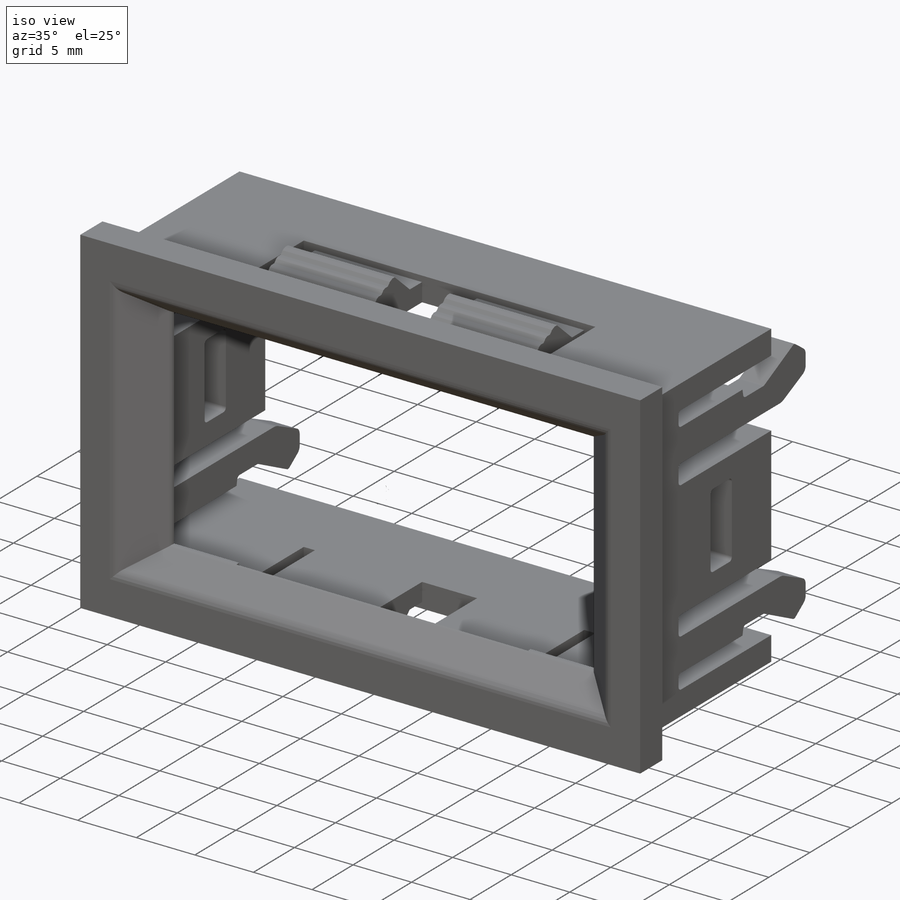
[diagram: iso view]
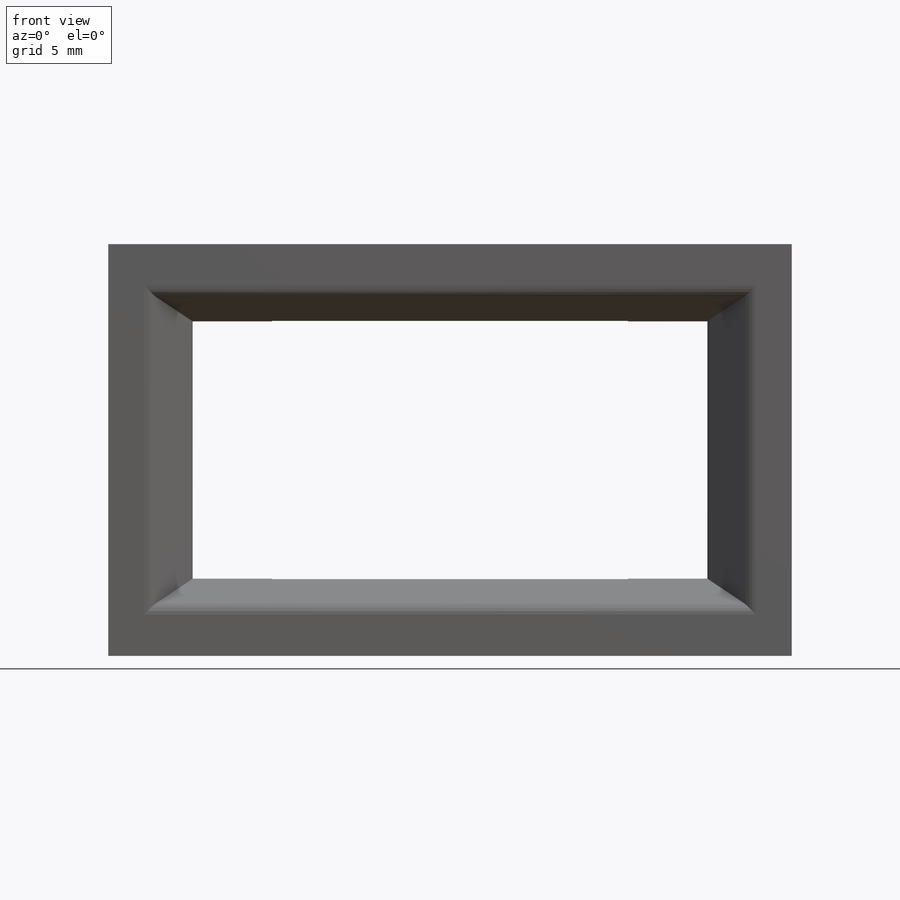
[diagram: front view]
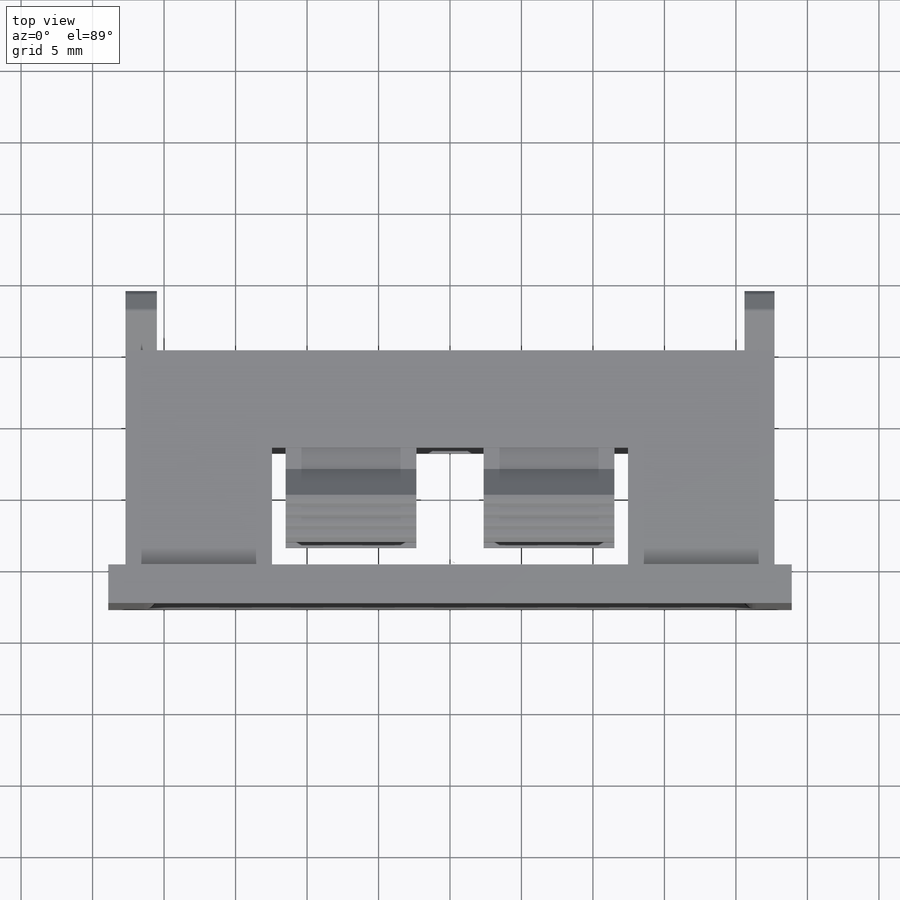
[diagram: top view]
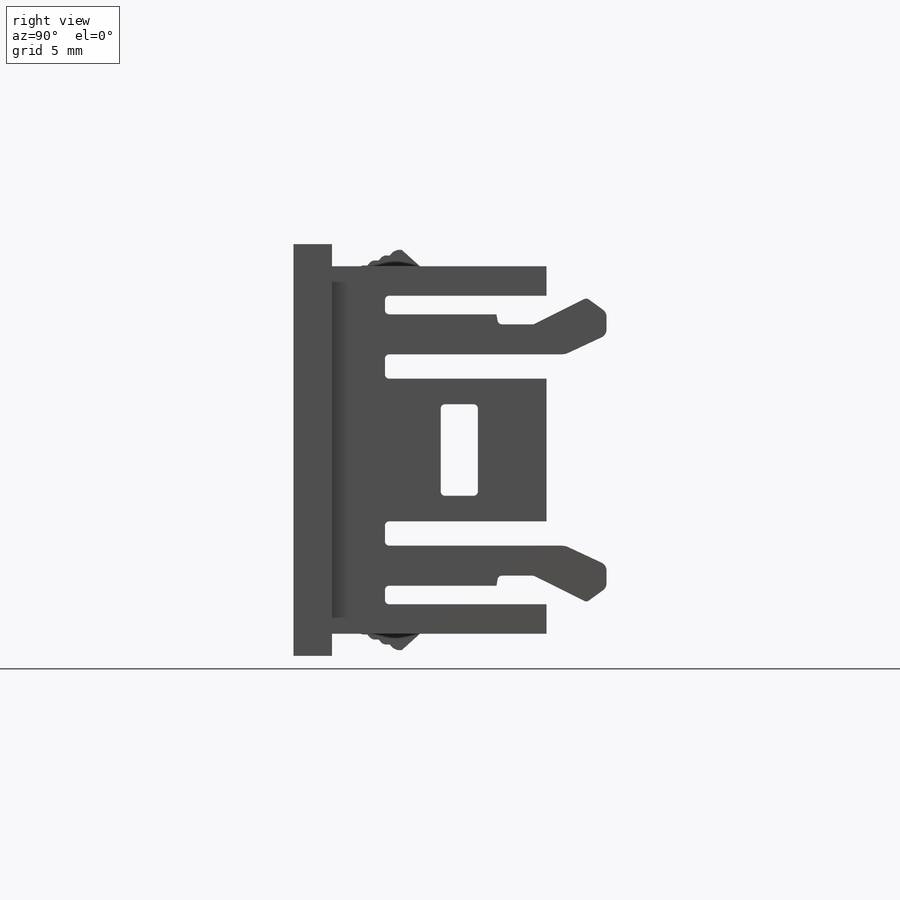
[diagram: right view]
SOLIDWORKS PART (.sldprt)
format: sldprt  version: not decoded by parser v0  size: 660,992 bytes
history: native  units: mm
features: sketch x11, extrude x6, cut_extrude x5, plane x3, fillet x2, material x1, mirror x1 (+10 scaffold rows collapsed)
feature tree (39):
  scaffold x10  (default folders/planes/origin — collapsed)
  material  "ABS"
  plane  "Plan de face"
  plane  "Plan de dessus"
  plane  "Plan de droite"
  sketch  "Esquisse1"  dims[c1.D1=~33.54717mm c1.D2=~64.937736mm c2.D1=47.8mm c2.D2=28.8mm c2.D3=~18.343911mm c2.D4=~30.514391mm c3.D3=36.0mm c3.D4=18.0mm c3.D5=~22.22052mm c3.D6=~39.110238mm c4.D5=42.0mm c4.D6=22.0mm]
  extrude  "Boss.-Extru.1"  Depth=2.7mm
  sketch  "Esquisse2"  dims[c1.D1=~18.72805mm c1.D2=~28.280812mm c2.D1=45.4mm c2.D2=25.7mm c2.D3=~52.169435mm]
  extrude  "Boss.-Extru.2"  Depth=19.2mm
  sketch  "Esquisse3"
  cut_extrude  "Enlèv. mat.-Extru.1"  Depth=3mm
  sketch  "Esquisse5"  dims[c1.D1=~3.379879mm c1.D2=~6.165975mm c2.D1=0.3mm c2.D2=~5.945109mm]
  extrude  "Boss.-Extru.3"  [1 undecoded]
  sketch  "Esquisse6"  dims[c1.D1=~5.829995mm c1.D2=~3.446593mm c2.D1=~2.386569mm]
  extrude  "Boss.-Extru.4"  [1 undecoded]
  fillet  "Congé1"  Radius=0.5mm
  fillet  "Congé2"  Radius=1mm
  sketch  "Esquisse7"  dims[c1.D1=~20.424482mm c1.D2=~40.296867mm c2.D1=2.06mm c2.D2=2.2mm c2.D3=2.1mm]
  cut_extrude  "Enlèv. mat.-Extru.2"  [1 undecoded]
  sketch  "Esquisse9"  dims[c1.D18=0.3mm c1.D19=0.3mm c1.D20=0.3mm c1.D21=1.0mm c1.D22=0.6mm c1.D23=0.3mm c1.D1=~6.172199mm c1.D2=~2.547674mm c2.D1=~5.853676mm c2.D2=~11.729744mm c3.D1=15.0mm c3.D2=3.7mm c3.D3=~2.93876mm c3.D4=~9.500302mm c4.D3=~7.738806mm c4.D1=15.0mm c5.D3=2.8mm c5.D4=1.7mm c5.D5=1.3mm c5.D6=6.4mm c5.D7=7.6mm c5.D8=2.6mm c5.D9=7.8mm c5.D10=2.1mm c5.D11=1.3mm c6.D11=10.0deg c6.D12=~12.440094mm c7.D12=25.0deg c7.D13=2.9mm c7.D14=~3.693698mm c8.D14=~1.387115deg c9.D14=5.1mm c9.D15=~2.276571mm c10.D15=26.5deg c10.D16=1.0mm c10.D17=~1.377111mm c11.D17=54.0deg c11.D19=~0.206652mm c11.D16=0.2mm c11.D23=~10.172968mm c11.D24=~23.114001mm c11.D13=2.9mm]
  cut_extrude  "Enlèv. mat.-Extru.3"  [1 undecoded]
  sketch  "Esquisse12"  dims[c1.D1=~5.368821mm c1.D2=~24.809148mm c2.D1=24.9mm c2.D2=23.0mm c2.D3=8.2mm c2.D4=4.7mm c2.D5=1.6mm]
  cut_extrude  "Enlèv. mat.-Extru.4"  [1 undecoded]
  sketch  "Esquisse13"  dims[c1.D1=~1.353216mm c2.D1=42.0deg c2.D2=6.15mm c2.D3=~4.118389mm c3.D3=24.0deg c3.D4=2.0mm c3.D5=~11.100346mm]
  extrude  "Boss.-Extru.5"  [1 undecoded]
  sketch  "Esquisse14"  dims[D1=0.0mm D2=0.0mm]
  extrude  "Boss.-Extru.6"  [1 undecoded]
  sketch  "Esquisse16"  dims[c1.D1=~5.711749mm c1.D2=~4.752802mm c2.D1=0.5mm c2.D2=28.0mm c2.D3=27.2mm c2.D4=~0.322469mm c3.D4=48.0deg c3.D5=0.35mm c3.D6=26.5mm c3.D7=~0.098096mm]
  cut_extrude  "Enlèv. mat.-Extru.5"  [1 undecoded]
  mirror  "Symétrie1"
decode coverage: 15 of 25 modeling features carry decoded parameters
note: ~ marks probable driven/reference dimensions
note: 8 parameter values undecoded
summary: no parameter record found for 8 features
note: suppression state not decoded; provenance and decode notes live in map.json
